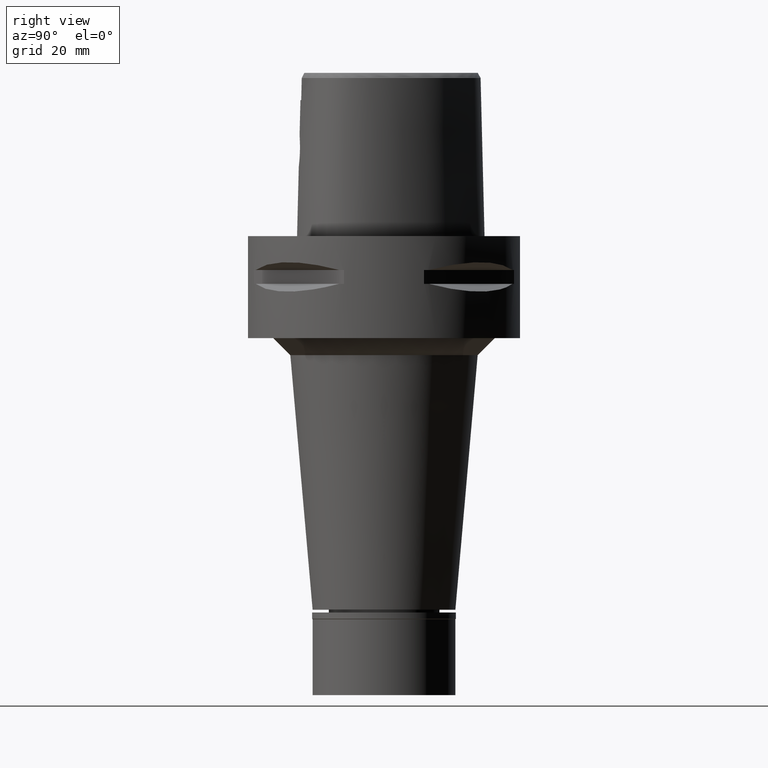
[diagram: clean part render]
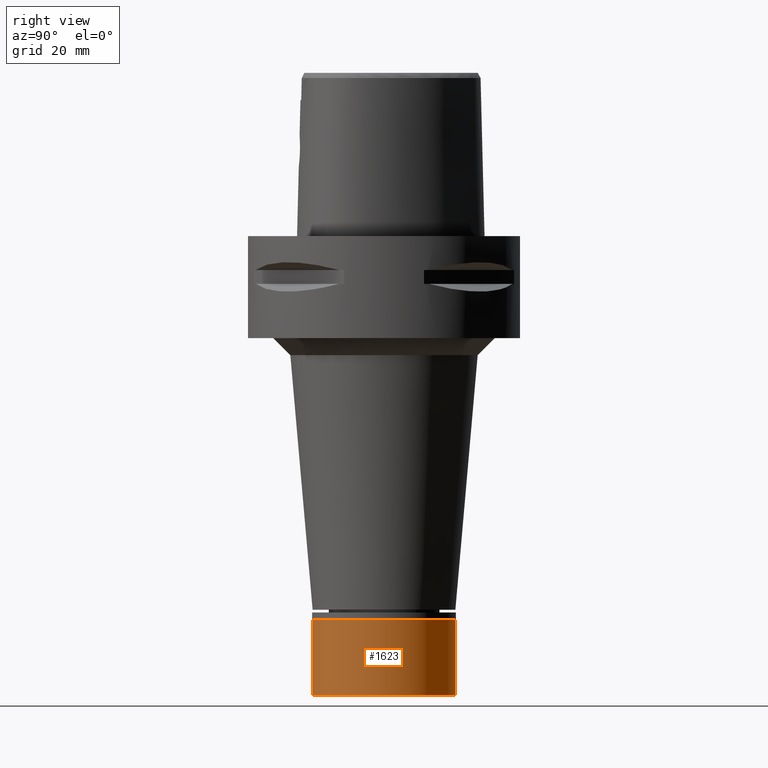
[diagram: same view with one face highlighted and labeled with its STEP entity id]
A machine part, right view. The second image highlights one B-rep face of the part: STEP entity #1623.
In plain terms, the highlighted cylindrical surface (partial cylindrical patch) has radius 21 mm, axis along (0, 0, -1).
Its self-contained STEP definition (entity closure, byte-faithful):
#359 = CYLINDRICAL_SURFACE ( 'NONE', #391, 21.00000000000000000 ) ;
#391 = AXIS2_PLACEMENT_3D ( 'NONE', #2852, #4408, #3256 ) ;
#796 = VECTOR ( 'NONE', #5003, 1000.000000000000000 ) ;
#1009 = CARTESIAN_POINT ( 'NONE',  ( 0.0000000000000000000, -21.00000000000000000, -2.000000000000000000 ) ) ;
#1363 = VERTEX_POINT ( 'NONE', #4386 ) ;
#1492 = VERTEX_POINT ( 'NONE', #4800 ) ;
#1546 = EDGE_CURVE ( 'NONE', #1363, #1492, #3471, .T. ) ;
#1623 = ADVANCED_FACE ( 'NONE', ( #3645 ), #359, .T. ) ;
#1847 = LINE ( 'NONE', #4701, #2795 ) ;
#1959 = EDGE_CURVE ( 'NONE', #1492, #4729, #2987, .T. ) ;
#2127 = DIRECTION ( 'NONE',  ( 0.0000000000000000000, -1.000000000000000000, 0.0000000000000000000 ) ) ;
#2265 = DIRECTION ( 'NONE',  ( 0.0000000000000000000, 0.0000000000000000000, -1.000000000000000000 ) ) ;
#2394 = AXIS2_PLACEMENT_3D ( 'NONE', #4461, #4046, #2127 ) ;
#2396 = AXIS2_PLACEMENT_3D ( 'NONE', #3699, #4412, #2453 ) ;
#2452 = ORIENTED_EDGE ( 'NONE', *, *, #1546, .T. ) ;
#2453 = DIRECTION ( 'NONE',  ( 0.0000000000000000000, 1.000000000000000000, 0.0000000000000000000 ) ) ;
#2747 = CARTESIAN_POINT ( 'NONE',  ( 0.0000000000000000000, -21.00000000000000000, -24.29999999999999716 ) ) ;
#2795 = VECTOR ( 'NONE', #2265, 1000.000000000000000 ) ;
#2852 = CARTESIAN_POINT ( 'NONE',  ( 0.0000000000000000000, 0.0000000000000000000, 0.0000000000000000000 ) ) ;
#2885 = ORIENTED_EDGE ( 'NONE', *, *, #3232, .T. ) ;
#2987 = LINE ( 'NONE', #1009, #796 ) ;
#3014 = EDGE_CURVE ( 'NONE', #1363, #3220, #1847, .T. ) ;
#3044 = CIRCLE ( 'NONE', #2394, 21.00000000000000000 ) ;
#3220 = VERTEX_POINT ( 'NONE', #3258 ) ;
#3232 = EDGE_CURVE ( 'NONE', #4729, #3220, #3044, .T. ) ;
#3256 = DIRECTION ( 'NONE',  ( 0.0000000000000000000, -1.000000000000000000, 0.0000000000000000000 ) ) ;
#3258 = CARTESIAN_POINT ( 'NONE',  ( 0.0000000000000000000, 21.00000000000000000, -24.29999999999999716 ) ) ;
#3471 = CIRCLE ( 'NONE', #2396, 21.00000000000000000 ) ;
#3645 = FACE_OUTER_BOUND ( 'NONE', #4371, .T. ) ;
#3699 = CARTESIAN_POINT ( 'NONE',  ( 0.0000000000000000000, 0.0000000000000000000, -2.000000000000000000 ) ) ;
#3953 = ORIENTED_EDGE ( 'NONE', *, *, #3014, .F. ) ;
#4046 = DIRECTION ( 'NONE',  ( 0.0000000000000000000, 0.0000000000000000000, 1.000000000000000000 ) ) ;
#4371 = EDGE_LOOP ( 'NONE', ( #2452, #4684, #2885, #3953 ) ) ;
#4386 = CARTESIAN_POINT ( 'NONE',  ( 0.0000000000000000000, 21.00000000000000000, -2.000000000000000000 ) ) ;
#4408 = DIRECTION ( 'NONE',  ( 0.0000000000000000000, 0.0000000000000000000, -1.000000000000000000 ) ) ;
#4412 = DIRECTION ( 'NONE',  ( 0.0000000000000000000, 0.0000000000000000000, -1.000000000000000000 ) ) ;
#4461 = CARTESIAN_POINT ( 'NONE',  ( 0.0000000000000000000, 0.0000000000000000000, -24.29999999999999716 ) ) ;
#4684 = ORIENTED_EDGE ( 'NONE', *, *, #1959, .T. ) ;
#4701 = CARTESIAN_POINT ( 'NONE',  ( 0.0000000000000000000, 21.00000000000000000, -2.000000000000000000 ) ) ;
#4729 = VERTEX_POINT ( 'NONE', #2747 ) ;
#4800 = CARTESIAN_POINT ( 'NONE',  ( 0.0000000000000000000, -21.00000000000000000, -2.000000000000000000 ) ) ;
#5003 = DIRECTION ( 'NONE',  ( 0.0000000000000000000, 0.0000000000000000000, -1.000000000000000000 ) ) ;